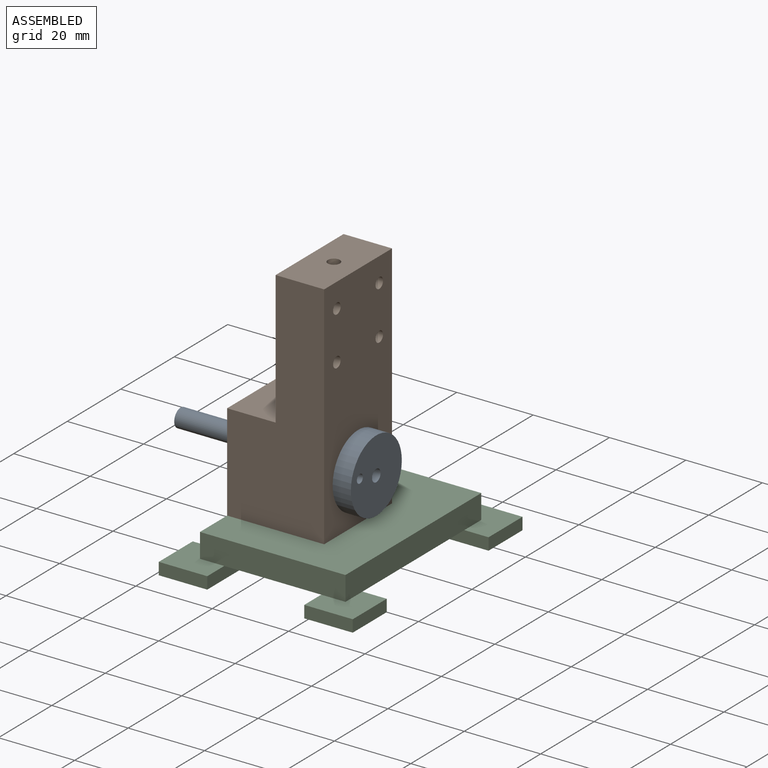
[diagram: assembled view]
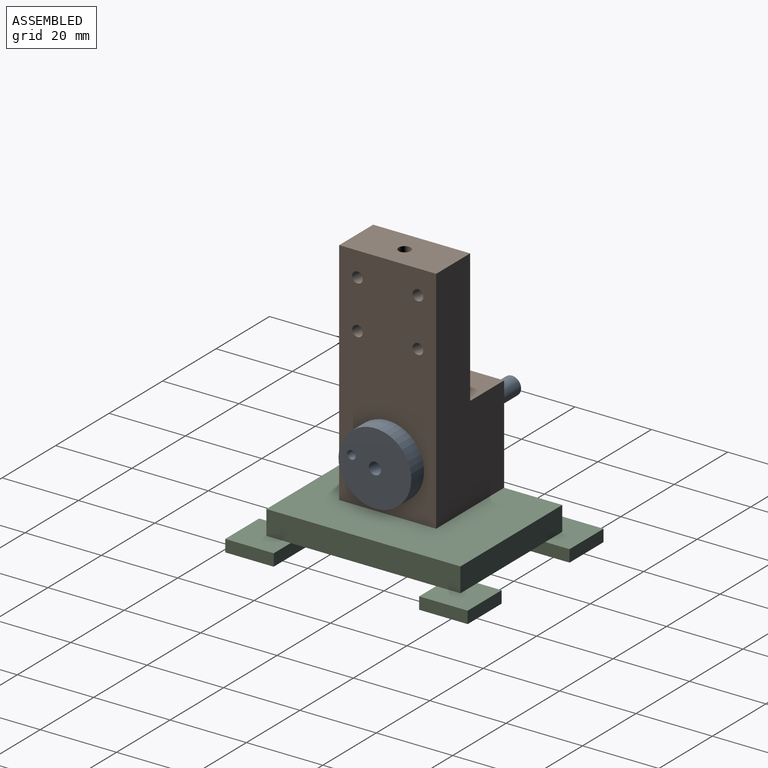
[diagram: assembled view, second angle]
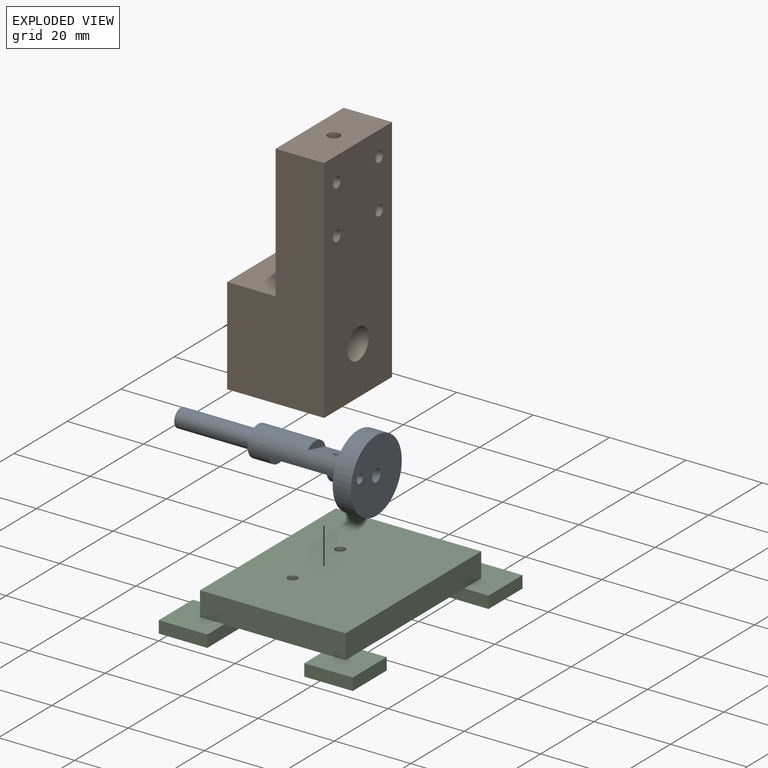
[diagram: exploded view]
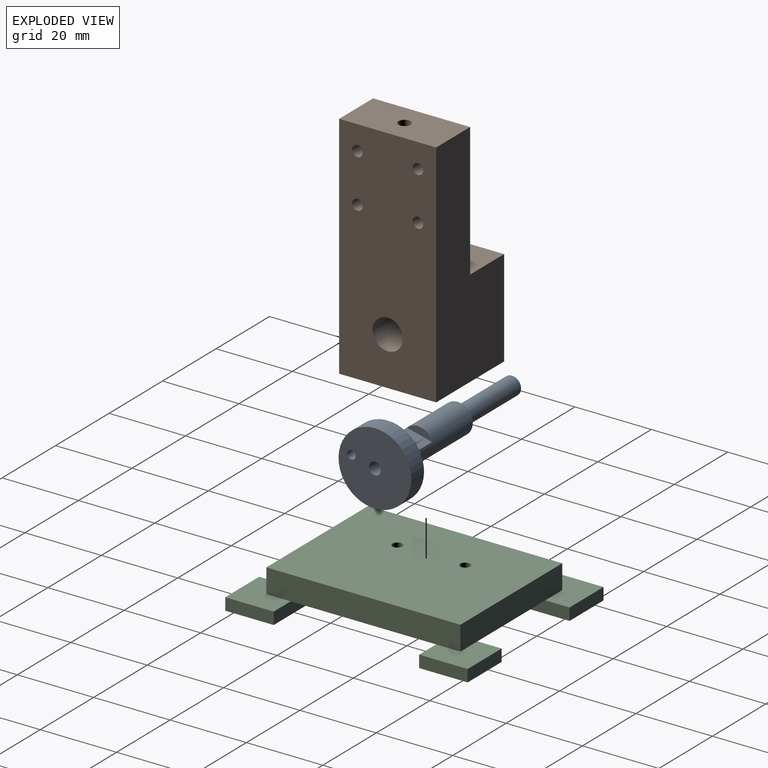
[diagram: exploded view, second angle]
ASSEMBLY  parts=3 mates=3
PART A: 17 faces, bbox 19.1x51.3x19.1 mm
  f0: cylinder r=3.96mm len=26.16mm, axis (0,-1,0), area 465.7mm2, adj f3,f4,f9,f10,f11,f12,f13,f14
  f1: cylinder r=9.53mm len=19.05mm, axis (0,1,0), area 285.8mm2, adj f2,f3
  f2: plane 19.05x19.05mm, normal (0,-1,0), area 273.1mm2, adj f1,f6,f8
  f3: plane 19.05x19.05mm, normal (0,1,0), area 231.7mm2, adj f0,f1,f8
  f4: plane 7.92x7.92mm, normal (0,1,0), area 31.4mm2, adj f0,f5
  f5: cylinder r=2.39mm len=20.32mm, axis (0,-1,0), area 304.8mm2, adj f4,f16
  f6: cylinder r=1.59mm len=11.43mm, axis (0,-1,0), area 107mm2, adj f2,f7,f15
  f7: plane 3.18x3.18mm, normal (0,-1,0), area 7.9mm2, adj f6
  f8: cylinder r=1.13mm len=4.78mm, axis (0,-1,0), area 33.9mm2, adj f2,f3
  f9: plane 6.77x1.91mm, normal (0,1,0), area 9.1mm2, adj f0,f10
  f10: plane 7.62x6.77mm, normal (0,0,1), area 45.5mm2, adj f0,f9,f11,f15
  f11: plane 6.77x1.91mm, normal (0,-1,0), area 9.1mm2, adj f0,f10
  f12: plane 6.77x1.91mm, normal (0,-1,0), area 9.1mm2, adj f0,f13
  f13: plane 15.24x6.77mm, normal (0,0,-1), area 103.2mm2, adj f0,f12,f14
  f14: plane 6.77x1.91mm, normal (0,1,0), area 9.1mm2, adj f0,f13
  f15: cylinder r=1.4mm len=2.79mm, axis (0,0,1), area 7.5mm2, adj f6,f10
  f16: plane 4.78x4.78mm, normal (0,1,0), area 17.9mm2, adj f5
PART B: 27 faces, bbox 25.4x25.4x60.3 mm
  f0: cylinder r=1.41mm len=9.53mm, axis (-1,0,0), area 84.4mm2, adj f7,f20
  f1: cylinder r=1.41mm len=9.53mm, axis (-1,0,0), area 84.4mm2, adj f7,f18
  f2: cylinder r=1.41mm len=9.53mm, axis (-1,0,0), area 84.4mm2, adj f7,f16
  f3: cylinder r=1.41mm len=9.53mm, axis (-1,0,0), area 84.4mm2, adj f7,f14
  f4: plane 25.4x12.7mm, normal (0,0,1), area 314.7mm2, adj f5,f9,f10,f11,f26
  f5: plane 25.4x25.4mm, normal (-1,0,0), area 595.7mm2, adj f4,f6,f10,f11,f13
  f6: plane 25.4x25.4mm, normal (0,0,-1), area 638.9mm2, adj f5,f7,f10,f11,f22,f24
  f7: plane 60.33x25.4mm, normal (1,0,0), area 1457.8mm2, adj f0,f1,f2,f3,f6,f8,f10,f11
  f8: plane 25.4x12.7mm, normal (0,0,1), area 314.7mm2, adj f7,f9,f10,f11,f12
  f9: plane 34.93x25.4mm, normal (-1,0,0), area 815.5mm2, adj f4,f8,f10,f11,f15,f17,f19,f21
  f10: plane 60.33x25.4mm, normal (0,-1,0), area 1088.7mm2, adj f4,f5,f6,f7,f8,f9
  f11: plane 60.33x25.4mm, normal (0,1,0), area 1088.7mm2, adj f4,f5,f6,f7,f8,f9
  f12: cylinder r=1.59mm len=43.99mm, axis (0,0,1), area 437.1mm2, adj f8,f13
  f13: cylinder r=3.97mm len=25.4mm, axis (-1,0,0), area 617.2mm2, adj f5,f7,f12,f26
  f14: plane 4.78x4.78mm, normal (-1,0,0), area 11.7mm2, adj f3,f15
  f15: cylinder r=2.39mm len=4.78mm, axis (-1,0,0), area 47.6mm2, adj f9,f14
  f16: plane 4.78x4.78mm, normal (-1,0,0), area 11.7mm2, adj f2,f17
  f17: cylinder r=2.39mm len=4.78mm, axis (-1,0,0), area 47.6mm2, adj f9,f16
  f18: plane 4.78x4.78mm, normal (-1,0,0), area 11.7mm2, adj f1,f19
  f19: cylinder r=2.39mm len=4.78mm, axis (-1,0,0), area 47.6mm2, adj f9,f18
  f20: plane 4.78x4.78mm, normal (-1,0,0), area 11.7mm2, adj f0,f21
  f21: cylinder r=2.39mm len=4.78mm, axis (-1,0,0), area 47.6mm2, adj f9,f20
  f22: cylinder r=1mm len=12.7mm, axis (0,0,-1), area 79.6mm2, adj f6,f23
  f23: plane 1.99x1.99mm, normal (0,0,-1), area 3.1mm2, adj f22
  f24: cylinder r=1mm len=12.7mm, axis (0,0,-1), area 79.6mm2, adj f6,f25
  f25: plane 1.99x1.99mm, normal (0,0,-1), area 3.1mm2, adj f24
  f26: cylinder r=1.59mm len=9.06mm, axis (0,0,1), area 88.7mm2, adj f4,f13
PART C: 32 faces, bbox 50.8x63.5x9.5 mm
  f0: plane 50.8x38.1mm, normal (0,0,-1), area 1763.9mm2, adj f1,f2,f3,f4,f7,f8,f12,f13
  f1: plane 50.8x6.35mm, normal (-1,0,0), area 322.6mm2, adj f0,f2,f4,f5,f6,f18
  f2: plane 38.1x6.35mm, normal (0,-1,0), area 241.9mm2, adj f0,f1,f3,f5,f6,f17
  f3: plane 50.8x6.35mm, normal (1,0,0), area 322.6mm2, adj f0,f2,f4,f5,f17,f24
  f4: plane 38.1x6.35mm, normal (0,1,0), area 241.9mm2, adj f0,f1,f3,f5,f18,f24
  f5: plane 50.8x38.1mm, normal (0,0,1), area 1925.1mm2, adj f1,f2,f3,f4,f30,f31
  f6: plane 12.7x12.7mm, normal (0,0,1), area 121mm2, adj f1,f2,f7,f8,f9,f10
  f7: plane 12.7x3.18mm, normal (0,1,0), area 40.3mm2, adj f0,f6,f8,f10,f11
  f8: plane 12.7x3.18mm, normal (1,0,0), area 40.3mm2, adj f0,f6,f7,f9,f11
  f9: plane 12.7x3.18mm, normal (0,-1,0), area 40.3mm2, adj f6,f8,f10,f11
  f10: plane 12.7x3.18mm, normal (-1,0,0), area 40.3mm2, adj f6,f7,f9,f11
  f11: plane 12.7x12.7mm, normal (0,0,-1), area 161.3mm2, adj f7,f8,f9,f10
  f12: plane 12.7x3.18mm, normal (-1,0,0), area 40.3mm2, adj f0,f13,f15,f16,f17
  f13: plane 12.7x3.18mm, normal (0,1,0), area 40.3mm2, adj f0,f12,f14,f16,f17
  f14: plane 12.7x3.18mm, normal (1,0,0), area 40.3mm2, adj f13,f15,f16,f17
  f15: plane 12.7x3.18mm, normal (0,-1,0), area 40.3mm2, adj f12,f14,f16,f17
  f16: plane 12.7x12.7mm, normal (0,0,-1), area 161.3mm2, adj f12,f13,f14,f15
  f17: plane 12.7x12.7mm, normal (0,0,1), area 121mm2, adj f2,f3,f12,f13,f14,f15
  f18: plane 12.7x12.7mm, normal (0,0,1), area 121mm2, adj f1,f4,f19,f20,f21,f22
  f19: plane 12.7x3.18mm, normal (1,0,0), area 40.3mm2, adj f0,f18,f20,f22,f23
  f20: plane 12.7x3.18mm, normal (0,-1,0), area 40.3mm2, adj f0,f18,f19,f21,f23
  f21: plane 12.7x3.18mm, normal (-1,0,0), area 40.3mm2, adj f18,f20,f22,f23
  f22: plane 12.7x3.18mm, normal (0,1,0), area 40.3mm2, adj f18,f19,f21,f23
  f23: plane 12.7x12.7mm, normal (0,0,-1), area 161.3mm2, adj f19,f20,f21,f22
  f24: plane 12.7x12.7mm, normal (0,0,1), area 121mm2, adj f3,f4,f25,f26,f27,f28
  f25: plane 12.7x3.18mm, normal (-1,0,0), area 40.3mm2, adj f0,f24,f26,f28,f29
  f26: plane 12.7x3.18mm, normal (0,1,0), area 40.3mm2, adj f24,f25,f27,f29
  f27: plane 12.7x3.18mm, normal (1,0,0), area 40.3mm2, adj f24,f26,f28,f29
  f28: plane 12.7x3.18mm, normal (0,-1,0), area 40.3mm2, adj f0,f24,f25,f27,f29
  f29: plane 12.7x12.7mm, normal (0,0,-1), area 161.3mm2, adj f25,f26,f27,f28
  f30: cylinder r=1.28mm len=6.35mm, axis (0,0,-1), area 51.2mm2, adj f0,f5
  f31: cylinder r=1.28mm len=6.35mm, axis (0,0,-1), area 51.2mm2, adj f0,f5
PLACE A rot(axis=(-0.12,0.12,0.98),90.9deg) t=(31.75,29.21,22.22)mm
PLACE B rot(axis=(1,0,0),0deg) t=(6.35,41.91,9.53)mm
PLACE C t=(6.35,6.35,3.18)mm
MATE pin_slot B.f13 <-> A.f1  axis (1,0,0) through (31.75,29.21,22.22)mm
MATE cylindrical B.f13 <-> A.f1  axis (1,0,0) through (31.75,29.21,22.22)mm
MATE fastened C.f31 <-> B.f24  axis (0,0,1) through (19.05,22.86,9.53)mm
